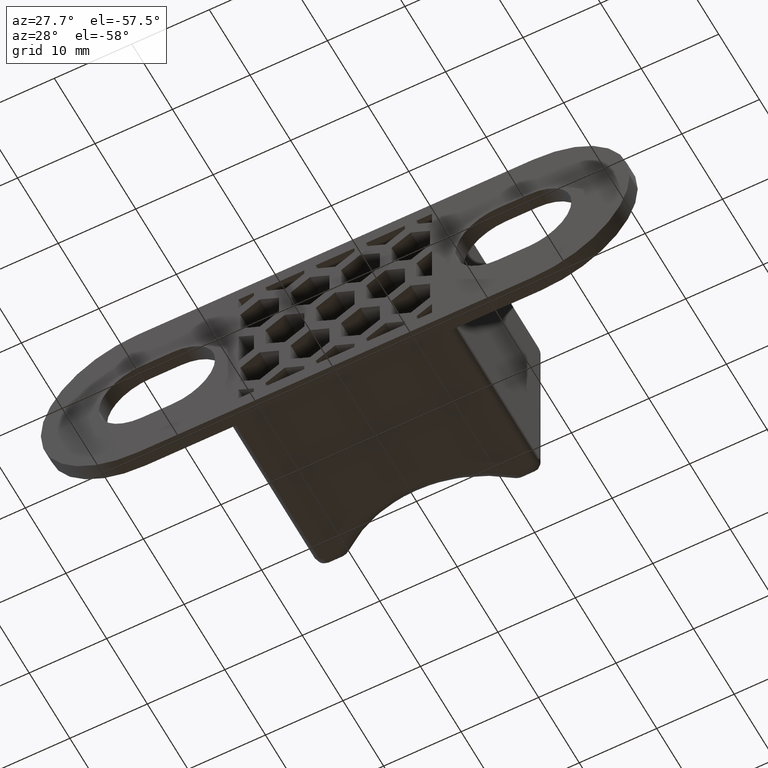
[diagram: clean part render]
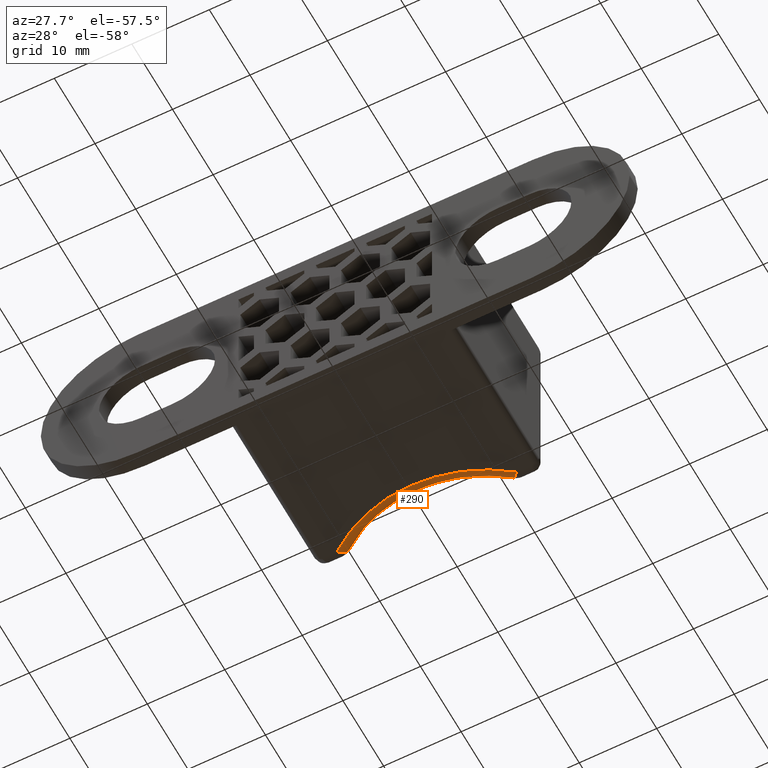
[diagram: same view with one face highlighted and labeled with its STEP entity id]
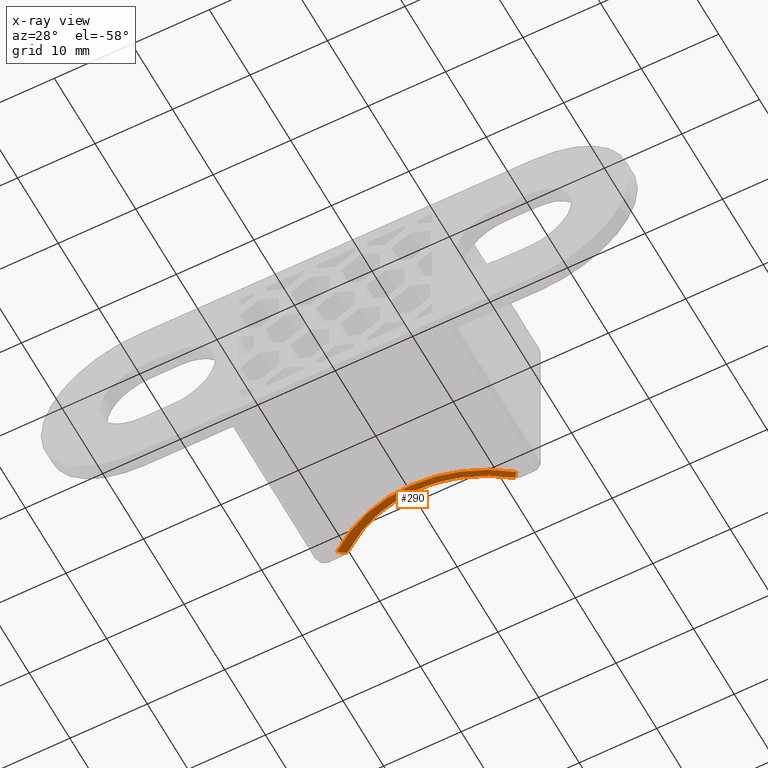
[diagram: x-ray of the same camera — body ghosted, the highlighted face saturated]
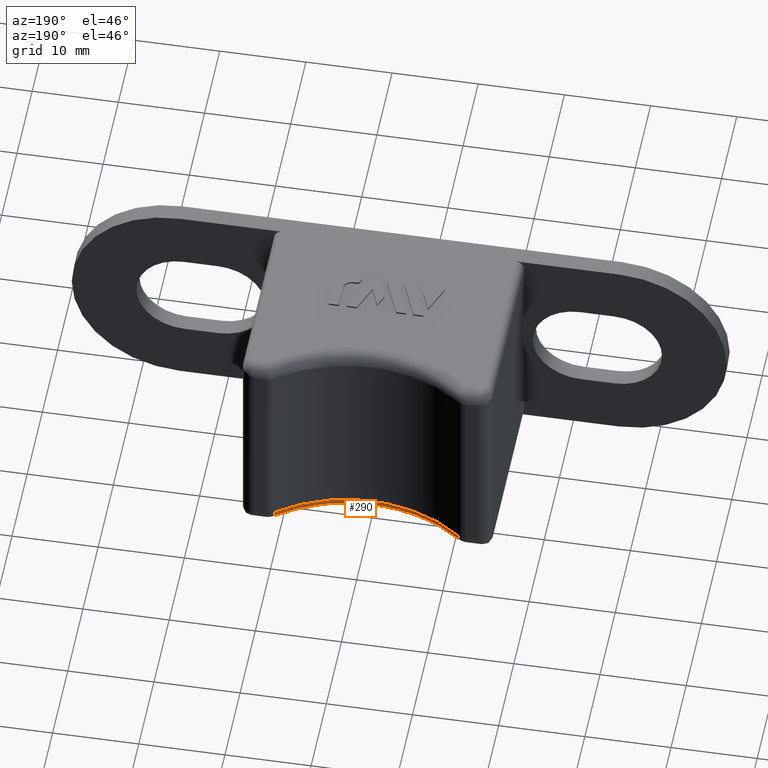
[diagram: same view with one face highlighted and labeled with its STEP entity id]
A machine part, auxiliary view. The second image highlights one B-rep face of the part: STEP entity #290.
The next image is the same camera in x-ray: the body ghosted, the highlighted face saturated — about 0% of this face is hidden behind the body in this view.
A second angle (auxiliary view) of the same face is appended — the face is thin or edge-on in the first view.
In plain terms, the highlighted toroidal blend (fillet) surface has major radius 18.75 mm and minor (blend) radius 1.5 mm.
Its self-contained STEP definition (entity closure, byte-faithful):
#290 = ADVANCED_FACE( '', ( #768 ), #769, .T. );
#768 = FACE_OUTER_BOUND( '', #1788, .T. );
#769 = TOROIDAL_SURFACE( '', #1789, 18.7500000000000, 1.50000000000000 );
#1788 = EDGE_LOOP( '', ( #3537, #3538, #3539, #3540 ) );
#1789 = AXIS2_PLACEMENT_3D( '', #3541, #3542, #3543 );
#3537 = ORIENTED_EDGE( '', *, *, #4217, .T. );
#3538 = ORIENTED_EDGE( '', *, *, #3868, .F. );
#3539 = ORIENTED_EDGE( '', *, *, #3851, .F. );
#3540 = ORIENTED_EDGE( '', *, *, #3902, .F. );
#3541 = CARTESIAN_POINT( '', ( 0.000000000000000, 37.2500000000000, -11.0000000000000 ) );
#3542 = DIRECTION( '', ( 0.000000000000000, 0.000000000000000, -1.00000000000000 ) );
#3543 = DIRECTION( '', ( -1.00000000000000, 0.000000000000000, 0.000000000000000 ) );
#3851 = EDGE_CURVE( '', #4615, #4609, #4617, .T. );
#3868 = EDGE_CURVE( '', #4609, #4649, #4650, .F. );
#3902 = EDGE_CURVE( '', #4707, #4615, #4708, .T. );
#4217 = EDGE_CURVE( '', #4707, #4649, #5169, .F. );
#4609 = VERTEX_POINT( '', #5737 );
#4615 = VERTEX_POINT( '', #5745 );
#4617 = CIRCLE( '', #5747, 1.50000000000000 );
#4649 = VERTEX_POINT( '', #5794 );
#4650 = CIRCLE( '', #5795, 18.7500000000000 );
#4707 = VERTEX_POINT( '', #5870 );
#4708 = CIRCLE( '', #5871, 17.2500000000000 );
#5169 = CIRCLE( '', #6563, 1.50000000000000 );
#5737 = CARTESIAN_POINT( '', ( -11.5758369027905, 22.5000000000002, -12.5000000000000 ) );
#5745 = CARTESIAN_POINT( '', ( -10.6497699505670, 23.6800000000000, -11.0000000000000 ) );
#5747 = AXIS2_PLACEMENT_3D( '', #6823, #6824, #6825 );
#5794 = CARTESIAN_POINT( '', ( 11.5758369027905, 22.5000000000000, -12.5000000000000 ) );
#5795 = AXIS2_PLACEMENT_3D( '', #6844, #6845, #6846 );
#5870 = CARTESIAN_POINT( '', ( 10.6497699505670, 23.6800000000000, -11.0000000000000 ) );
#5871 = AXIS2_PLACEMENT_3D( '', #6910, #6911, #6912 );
#6563 = AXIS2_PLACEMENT_3D( '', #7393, #7394, #7395 );
#6823 = CARTESIAN_POINT( '', ( -11.5758369027902, 22.5000000000000, -11.0000000000000 ) );
#6824 = DIRECTION( '', ( -0.786666666666667, 0.617377968148812, 2.64234241906322E-013 ) );
#6825 = DIRECTION( '', ( -0.617377968148812, -0.786666666666667, 1.46679469629386E-029 ) );
#6844 = CARTESIAN_POINT( '', ( 0.000000000000000, 37.2500000000000, -12.5000000000000 ) );
#6845 = DIRECTION( '', ( 0.000000000000000, 0.000000000000000, -1.00000000000000 ) );
#6846 = DIRECTION( '', ( -1.00000000000000, 0.000000000000000, 0.000000000000000 ) );
#6910 = CARTESIAN_POINT( '', ( 0.000000000000000, 37.2500000000000, -11.0000000000000 ) );
#6911 = DIRECTION( '', ( 0.000000000000000, 0.000000000000000, -1.00000000000000 ) );
#6912 = DIRECTION( '', ( -1.00000000000000, 0.000000000000000, 0.000000000000000 ) );
#7393 = CARTESIAN_POINT( '', ( 11.5758369027905, 22.5000000000002, -11.0000000000000 ) );
#7394 = DIRECTION( '', ( 0.786666666666505, 0.617377968149018, 0.000000000000000 ) );
#7395 = DIRECTION( '', ( -0.617377968149018, 0.786666666666505, 0.000000000000000 ) );